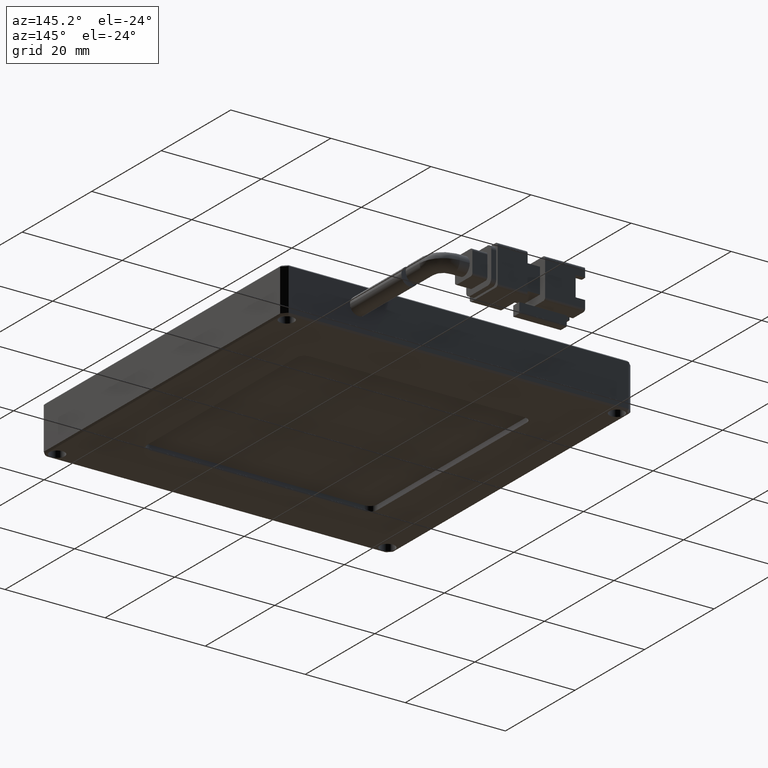
[diagram: clean part render]
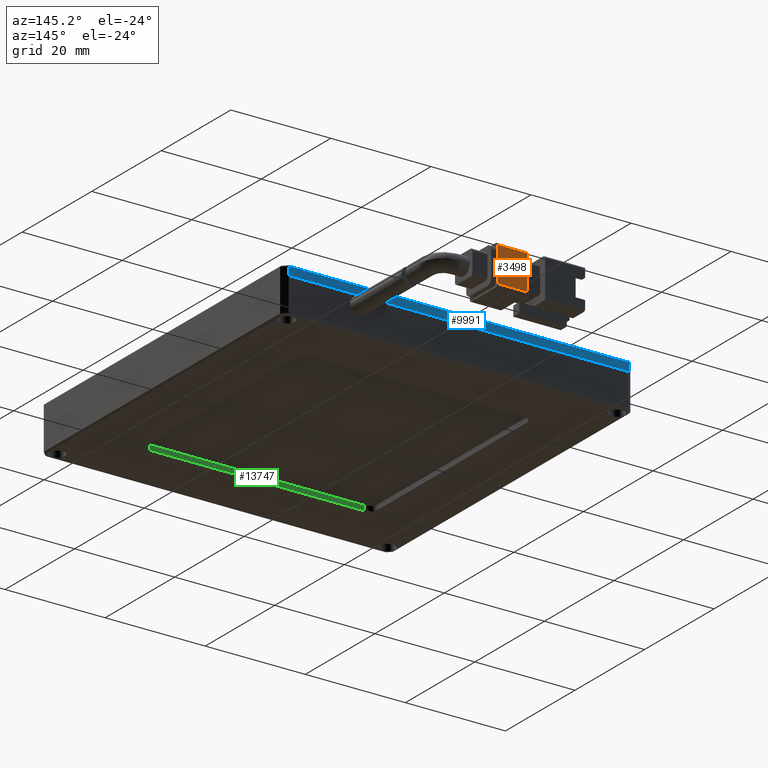
[diagram: same view with three faces highlighted in distinct colors, each labeled with its STEP entity id]
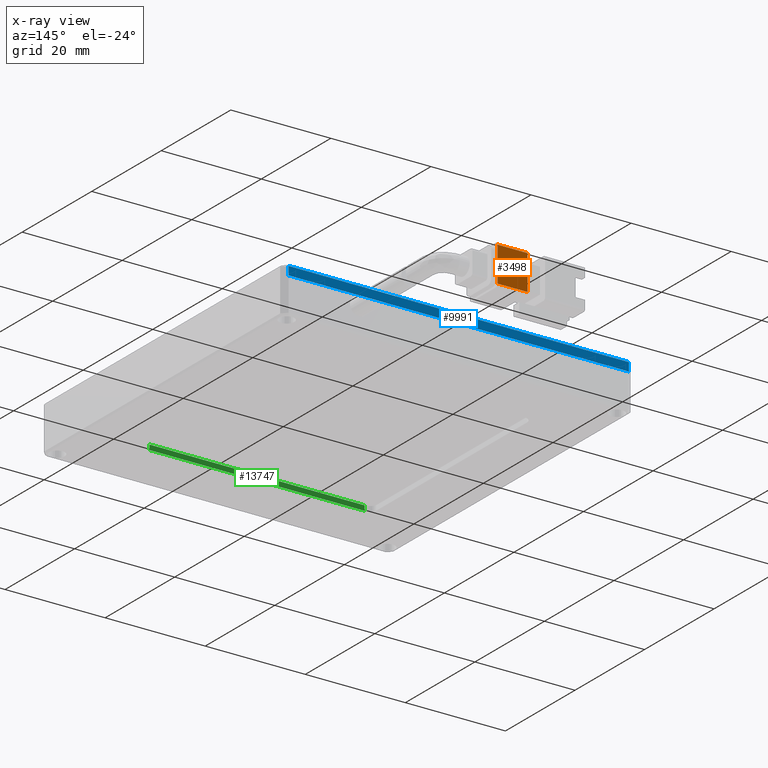
[diagram: x-ray of the same camera — body ghosted, the three highlighted faces saturated]
A machine part, auxiliary view with three faces highlighted in distinct colors.
The next image is the same camera in x-ray (body ghosted, the three faces saturated) — at least one of them is partly hidden behind the body in this view.
Their STEP definitions:

[orange] entity #3498 — the highlighted planar face has unit normal (0, -1, 0).
#1074 = DIRECTION ( 'NONE',  ( -0.0000000000000000000, 1.239088197126291300E-016, 1.000000000000000000 ) ) ;
#1180 = LINE ( 'NONE', #12308, #15919 ) ;
#1440 = LINE ( 'NONE', #16691, #8597 ) ;
#2544 = EDGE_CURVE ( 'NONE', #16433, #15683, #1440, .T. ) ;
#3076 = ORIENTED_EDGE ( 'NONE', *, *, #3231, .F. ) ;
#3231 = EDGE_CURVE ( 'NONE', #7904, #16433, #5689, .T. ) ;
#3498 = ADVANCED_FACE ( 'NONE', ( #11523 ), #6865, .F. ) ;
#4078 = CARTESIAN_POINT ( 'NONE',  ( -1.466307106598998800, 99.53591370558378100, -1.499999999999999100 ) ) ;
#5540 = EDGE_CURVE ( 'NONE', #15683, #11976, #5836, .T. ) ;
#5620 = EDGE_LOOP ( 'NONE', ( #18308, #10456, #13156, #3076 ) ) ;
#5689 = LINE ( 'NONE', #16012, #13302 ) ;
#5836 = LINE ( 'NONE', #9635, #13434 ) ;
#5965 = DIRECTION ( 'NONE',  ( 0.0000000000000000000, -1.239088197126291300E-016, -1.000000000000000000 ) ) ;
#6080 = DIRECTION ( 'NONE',  ( 0.0000000000000000000, -1.000000000000000000, 1.239088197126291300E-016 ) ) ;
#6137 = CARTESIAN_POINT ( 'NONE',  ( -1.466307106598998800, 99.53591370558378100, -1.499999999999999100 ) ) ;
#6865 = PLANE ( 'NONE',  #12005 ) ;
#7904 = VERTEX_POINT ( 'NONE', #8998 ) ;
#8597 = VECTOR ( 'NONE', #16245, 1000.000000000000000 ) ;
#8998 = CARTESIAN_POINT ( 'NONE',  ( -7.466307106598998500, 99.53591370558378100, 5.499999999999998200 ) ) ;
#9467 = DIRECTION ( 'NONE',  ( -1.000000000000000000, -0.0000000000000000000, -0.0000000000000000000 ) ) ;
#9635 = CARTESIAN_POINT ( 'NONE',  ( -1.466307106598998800, 99.53591370558378100, -1.499999999999999100 ) ) ;
#10456 = ORIENTED_EDGE ( 'NONE', *, *, #5540, .F. ) ;
#10461 = CARTESIAN_POINT ( 'NONE',  ( -7.466307106598998500, 99.53591370558378100, -1.499999999999999100 ) ) ;
#11523 = FACE_OUTER_BOUND ( 'NONE', #5620, .T. ) ;
#11976 = VERTEX_POINT ( 'NONE', #15555 ) ;
#12005 = AXIS2_PLACEMENT_3D ( 'NONE', #6137, #6080, #5965 ) ;
#12308 = CARTESIAN_POINT ( 'NONE',  ( -1.466307106598998800, 99.53591370558378100, 5.499999999999998200 ) ) ;
#12886 = EDGE_CURVE ( 'NONE', #11976, #7904, #1180, .T. ) ;
#13156 = ORIENTED_EDGE ( 'NONE', *, *, #2544, .F. ) ;
#13302 = VECTOR ( 'NONE', #15960, 1000.000000000000000 ) ;
#13434 = VECTOR ( 'NONE', #1074, 1000.000000000000000 ) ;
#15555 = CARTESIAN_POINT ( 'NONE',  ( -1.466307106598998800, 99.53591370558378100, 5.499999999999998200 ) ) ;
#15683 = VERTEX_POINT ( 'NONE', #4078 ) ;
#15919 = VECTOR ( 'NONE', #9467, 1000.000000000000000 ) ;
#15960 = DIRECTION ( 'NONE',  ( 0.0000000000000000000, 0.0000000000000000000, -1.000000000000000000 ) ) ;
#16012 = CARTESIAN_POINT ( 'NONE',  ( -7.466307106598998500, 99.53591370558378100, -1.499999999999998700 ) ) ;
#16245 = DIRECTION ( 'NONE',  ( 1.000000000000000000, 0.0000000000000000000, 0.0000000000000000000 ) ) ;
#16433 = VERTEX_POINT ( 'NONE', #10461 ) ;
#16691 = CARTESIAN_POINT ( 'NONE',  ( -1.466307106598998800, 99.53591370558378100, -1.499999999999999100 ) ) ;
#18308 = ORIENTED_EDGE ( 'NONE', *, *, #12886, .F. ) ;

[blue] entity #9991 — the highlighted planar face has unit normal (0, -1, 0).
#544 = VERTEX_POINT ( 'NONE', #1341 ) ;
#1299 = ORIENTED_EDGE ( 'NONE', *, *, #4159, .F. ) ;
#1341 = CARTESIAN_POINT ( 'NONE',  ( -46.46630710659900400, 72.53591370558378100, 5.699999999999991300 ) ) ;
#1865 = DIRECTION ( 'NONE',  ( 1.000000000000000000, -0.0000000000000000000, 0.0000000000000000000 ) ) ;
#3983 = ORIENTED_EDGE ( 'NONE', *, *, #18319, .F. ) ;
#4159 = EDGE_CURVE ( 'NONE', #16047, #544, #14360, .T. ) ;
#4438 = DIRECTION ( 'NONE',  ( -1.000000000000000000, -0.0000000000000000000, -0.0000000000000000000 ) ) ;
#4969 = CARTESIAN_POINT ( 'NONE',  ( -47.46630710659900400, 72.53591370558378100, 6.000000000000000000 ) ) ;
#5021 = VECTOR ( 'NONE', #8119, 1000.000000000000000 ) ;
#5842 = CARTESIAN_POINT ( 'NONE',  ( -47.46630710659900400, 72.53591370558378100, 5.699999999999991300 ) ) ;
#6348 = PLANE ( 'NONE',  #13300 ) ;
#6399 = DIRECTION ( 'NONE',  ( 0.0000000000000000000, -0.0000000000000000000, -1.000000000000000000 ) ) ;
#6948 = VERTEX_POINT ( 'NONE', #16372 ) ;
#7215 = VECTOR ( 'NONE', #1865, 1000.000000000000000 ) ;
#8119 = DIRECTION ( 'NONE',  ( -0.0000000000000000000, -0.0000000000000000000, -1.000000000000000000 ) ) ;
#9208 = LINE ( 'NONE', #16917, #16338 ) ;
#9376 = CARTESIAN_POINT ( 'NONE',  ( 21.53369289340101400, 72.53591370558378100, 5.699999999999992200 ) ) ;
#9991 = ADVANCED_FACE ( 'NONE', ( #11757 ), #6348, .F. ) ;
#10445 = CARTESIAN_POINT ( 'NONE',  ( -47.46630710659900400, 72.53591370558378100, 4.000000000000000000 ) ) ;
#11757 = FACE_OUTER_BOUND ( 'NONE', #13940, .T. ) ;
#12250 = EDGE_CURVE ( 'NONE', #16047, #13839, #16387, .T. ) ;
#12956 = CARTESIAN_POINT ( 'NONE',  ( 21.53369289340100000, 72.53591370558378100, 4.000000000000000000 ) ) ;
#13300 = AXIS2_PLACEMENT_3D ( 'NONE', #4969, #14975, #6399 ) ;
#13834 = CARTESIAN_POINT ( 'NONE',  ( 21.53369289340100000, 72.53591370558378100, 6.000000000000000000 ) ) ;
#13839 = VERTEX_POINT ( 'NONE', #12956 ) ;
#13894 = VECTOR ( 'NONE', #4438, 1000.000000000000000 ) ;
#13940 = EDGE_LOOP ( 'NONE', ( #1299, #14732, #17142, #3983 ) ) ;
#14360 = LINE ( 'NONE', #5842, #13894 ) ;
#14732 = ORIENTED_EDGE ( 'NONE', *, *, #12250, .T. ) ;
#14975 = DIRECTION ( 'NONE',  ( 0.0000000000000000000, -1.000000000000000000, 0.0000000000000000000 ) ) ;
#16047 = VERTEX_POINT ( 'NONE', #9376 ) ;
#16338 = VECTOR ( 'NONE', #18371, 1000.000000000000000 ) ;
#16372 = CARTESIAN_POINT ( 'NONE',  ( -46.46630710659900400, 72.53591370558378100, 3.999999999999999100 ) ) ;
#16387 = LINE ( 'NONE', #13834, #5021 ) ;
#16878 = EDGE_CURVE ( 'NONE', #6948, #13839, #18124, .T. ) ;
#16917 = CARTESIAN_POINT ( 'NONE',  ( -46.46630710659900400, 72.53591370558378100, 6.000000000000000000 ) ) ;
#17142 = ORIENTED_EDGE ( 'NONE', *, *, #16878, .F. ) ;
#18124 = LINE ( 'NONE', #10445, #7215 ) ;
#18319 = EDGE_CURVE ( 'NONE', #544, #6948, #9208, .T. ) ;
#18371 = DIRECTION ( 'NONE',  ( 0.0000000000000000000, -0.0000000000000000000, -1.000000000000000000 ) ) ;

[green] entity #13747 — the highlighted planar face has unit normal (0, 1, -0).
#816 = DIRECTION ( 'NONE',  ( 1.000000000000000000, -0.0000000000000000000, 0.0000000000000000000 ) ) ;
#866 = EDGE_CURVE ( 'NONE', #7069, #18244, #8498, .T. ) ;
#1802 = DIRECTION ( 'NONE',  ( 1.000000000000000000, -7.542275982507859600E-017, -0.0000000000000000000 ) ) ;
#2614 = ORIENTED_EDGE ( 'NONE', *, *, #7572, .F. ) ;
#3648 = ORIENTED_EDGE ( 'NONE', *, *, #5798, .T. ) ;
#3694 = EDGE_LOOP ( 'NONE', ( #6326, #3648, #2614, #15399 ) ) ;
#4576 = CARTESIAN_POINT ( 'NONE',  ( 9.033692893401015700, 14.53591370558375800, 4.000000000000000000 ) ) ;
#5033 = VERTEX_POINT ( 'NONE', #7131 ) ;
#5066 = CARTESIAN_POINT ( 'NONE',  ( -47.46630710659900400, 14.53591370558376300, -3.000000000000000000 ) ) ;
#5073 = VERTEX_POINT ( 'NONE', #15787 ) ;
#5375 = FACE_OUTER_BOUND ( 'NONE', #3694, .T. ) ;
#5638 = DIRECTION ( 'NONE',  ( 7.542275982507859600E-017, 1.000000000000000000, -0.0000000000000000000 ) ) ;
#5798 = EDGE_CURVE ( 'NONE', #5073, #5033, #6672, .T. ) ;
#6326 = ORIENTED_EDGE ( 'NONE', *, *, #8555, .T. ) ;
#6668 = VECTOR ( 'NONE', #1802, 1000.000000000000000 ) ;
#6672 = LINE ( 'NONE', #4576, #14320 ) ;
#6986 = PLANE ( 'NONE',  #15632 ) ;
#7069 = VERTEX_POINT ( 'NONE', #9651 ) ;
#7131 = CARTESIAN_POINT ( 'NONE',  ( 9.033692893401015700, 14.53591370558375900, -3.000000000000000000 ) ) ;
#7572 = EDGE_CURVE ( 'NONE', #7069, #5033, #13040, .T. ) ;
#8196 = CARTESIAN_POINT ( 'NONE',  ( -33.96630710659898300, 14.53591370558376300, -2.000000000000000000 ) ) ;
#8498 = LINE ( 'NONE', #14524, #15639 ) ;
#8555 = EDGE_CURVE ( 'NONE', #18244, #5073, #13844, .T. ) ;
#8983 = CARTESIAN_POINT ( 'NONE',  ( -35.46630710659897500, 14.53591370558376300, -2.000000000000000000 ) ) ;
#9183 = VECTOR ( 'NONE', #816, 1000.000000000000000 ) ;
#9651 = CARTESIAN_POINT ( 'NONE',  ( -33.96630710659898300, 14.53591370558376300, -3.000000000000000000 ) ) ;
#13040 = LINE ( 'NONE', #5066, #9183 ) ;
#13747 = ADVANCED_FACE ( 'NONE', ( #5375 ), #6986, .T. ) ;
#13844 = LINE ( 'NONE', #8983, #6668 ) ;
#14215 = CARTESIAN_POINT ( 'NONE',  ( -35.46630710659897500, 14.53591370558376300, 4.000000000000000000 ) ) ;
#14320 = VECTOR ( 'NONE', #14603, 1000.000000000000000 ) ;
#14524 = CARTESIAN_POINT ( 'NONE',  ( -33.96630710659898300, 14.53591370558376300, 4.000000000000000000 ) ) ;
#14603 = DIRECTION ( 'NONE',  ( -0.0000000000000000000, -0.0000000000000000000, -1.000000000000000000 ) ) ;
#15399 = ORIENTED_EDGE ( 'NONE', *, *, #866, .T. ) ;
#15590 = DIRECTION ( 'NONE',  ( -1.000000000000000000, 7.542275982507859600E-017, 0.0000000000000000000 ) ) ;
#15632 = AXIS2_PLACEMENT_3D ( 'NONE', #14215, #5638, #15590 ) ;
#15639 = VECTOR ( 'NONE', #16902, 1000.000000000000000 ) ;
#15787 = CARTESIAN_POINT ( 'NONE',  ( 9.033692893401015700, 14.53591370558375900, -2.000000000000000000 ) ) ;
#16902 = DIRECTION ( 'NONE',  ( 0.0000000000000000000, 0.0000000000000000000, 1.000000000000000000 ) ) ;
#18244 = VERTEX_POINT ( 'NONE', #8196 ) ;